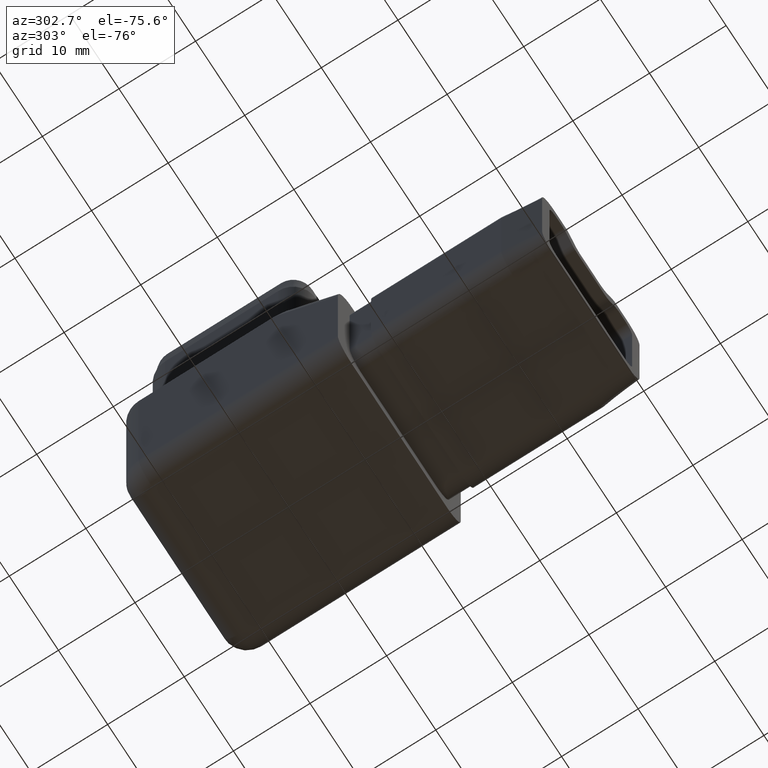
[diagram: clean part render]
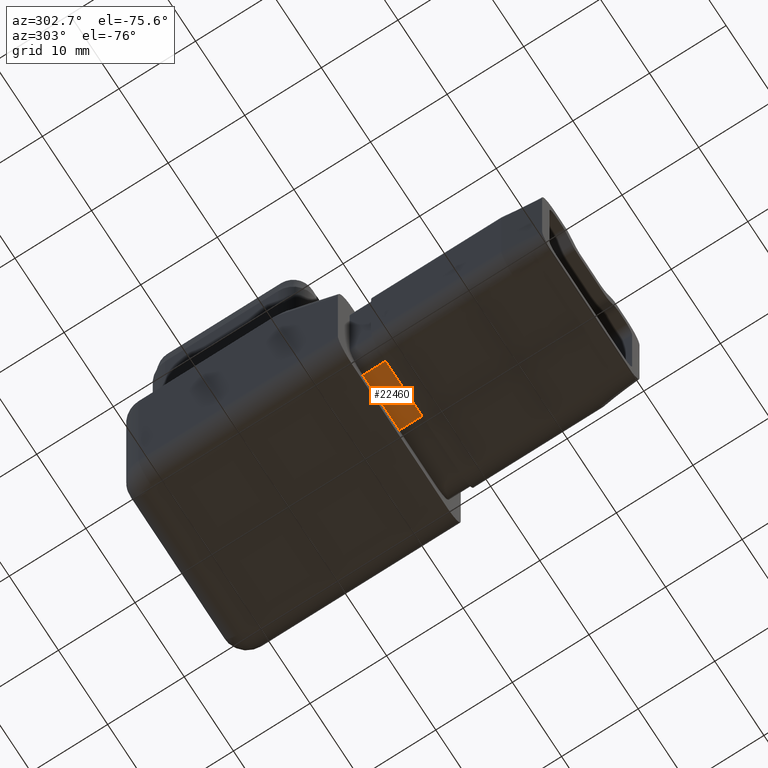
[diagram: same view with one face highlighted and labeled with its STEP entity id]
A machine part, auxiliary view. The second image highlights one B-rep face of the part: STEP entity #22460.
In plain terms, the highlighted planar face has unit normal (0, 0, -1).
Its self-contained STEP definition (entity closure, byte-faithful):
#287 = VECTOR ( 'NONE', #24107, 1000.000000000000000 ) ;
#478 = PLANE ( 'NONE',  #18721 ) ;
#811 = DIRECTION ( 'NONE',  ( 0.0000000000000000000, 4.440892098500625200E-016, -1.000000000000000000 ) ) ;
#1066 = B_SPLINE_CURVE_WITH_KNOTS ( 'NONE', 3,
 ( #16354, #4638, #6523, #20424 ),
 .UNSPECIFIED., .F., .F.,
 ( 4, 4 ),
 ( 0.0000000000000000000, 1.000000000000000000 ),
 .UNSPECIFIED. ) ;
#1442 = ORIENTED_EDGE ( 'NONE', *, *, #14283, .F. ) ;
#1624 = LINE ( 'NONE', #16746, #6238 ) ;
#2016 = CARTESIAN_POINT ( 'NONE',  ( -7.400000000000003900, -17.50000000000000400, -12.10000000000000700 ) ) ;
#2876 = DIRECTION ( 'NONE',  ( 1.000000000000000000, 0.0000000000000000000, 0.0000000000000000000 ) ) ;
#2885 = VECTOR ( 'NONE', #18732, 1000.000000000000000 ) ;
#4428 = CARTESIAN_POINT ( 'NONE',  ( 1.734723475976807100E-015, -14.50000000000000200, -12.10000000000000700 ) ) ;
#4638 = CARTESIAN_POINT ( 'NONE',  ( 0.0000000000000000000, -16.50000000000000400, -12.10000000000000700 ) ) ;
#5136 = CARTESIAN_POINT ( 'NONE',  ( 0.0000000000000000000, -17.50000000000000400, -12.10000000000000700 ) ) ;
#6238 = VECTOR ( 'NONE', #2876, 1000.000000000000000 ) ;
#6401 = EDGE_LOOP ( 'NONE', ( #16629, #8941, #9095, #1442 ) ) ;
#6523 = CARTESIAN_POINT ( 'NONE',  ( 0.0000000000000000000, -15.50000000000000400, -12.10000000000000500 ) ) ;
#7570 = CARTESIAN_POINT ( 'NONE',  ( -7.400000000000003900, -17.50000000000000400, -12.10000000000000700 ) ) ;
#8855 = EDGE_CURVE ( 'NONE', #25534, #15267, #12860, .T. ) ;
#8941 = ORIENTED_EDGE ( 'NONE', *, *, #14329, .T. ) ;
#9095 = ORIENTED_EDGE ( 'NONE', *, *, #24250, .F. ) ;
#11505 = VERTEX_POINT ( 'NONE', #5136 ) ;
#12860 = LINE ( 'NONE', #2016, #287 ) ;
#14283 = EDGE_CURVE ( 'NONE', #25534, #11505, #1624, .T. ) ;
#14309 = FACE_OUTER_BOUND ( 'NONE', #6401, .T. ) ;
#14329 = EDGE_CURVE ( 'NONE', #15267, #23473, #23223, .T. ) ;
#14568 = DIRECTION ( 'NONE',  ( 0.0000000000000000000, 1.000000000000000000, 4.440892098500625200E-016 ) ) ;
#15267 = VERTEX_POINT ( 'NONE', #24043 ) ;
#16354 = CARTESIAN_POINT ( 'NONE',  ( 0.0000000000000000000, -17.50000000000000400, -12.10000000000000700 ) ) ;
#16629 = ORIENTED_EDGE ( 'NONE', *, *, #8855, .T. ) ;
#16746 = CARTESIAN_POINT ( 'NONE',  ( -7.400000000000003900, -17.50000000000000400, -12.10000000000000700 ) ) ;
#16924 = CARTESIAN_POINT ( 'NONE',  ( -7.400000000000002100, -14.50000000000000200, -12.10000000000000700 ) ) ;
#18721 = AXIS2_PLACEMENT_3D ( 'NONE', #20113, #811, #14568 ) ;
#18732 = DIRECTION ( 'NONE',  ( 1.000000000000000000, 0.0000000000000000000, 0.0000000000000000000 ) ) ;
#20113 = CARTESIAN_POINT ( 'NONE',  ( -7.400000000000003900, -17.50000000000000400, -12.10000000000000700 ) ) ;
#20424 = CARTESIAN_POINT ( 'NONE',  ( 1.734723475976807100E-015, -14.50000000000000200, -12.10000000000000700 ) ) ;
#22460 = ADVANCED_FACE ( 'NONE', ( #14309 ), #478, .T. ) ;
#23223 = LINE ( 'NONE', #16924, #2885 ) ;
#23473 = VERTEX_POINT ( 'NONE', #4428 ) ;
#24043 = CARTESIAN_POINT ( 'NONE',  ( -7.400000000000002100, -14.50000000000000200, -12.10000000000000700 ) ) ;
#24107 = DIRECTION ( 'NONE',  ( 4.930380657631323800E-032, 1.000000000000000000, 4.440892098500625200E-016 ) ) ;
#24250 = EDGE_CURVE ( 'NONE', #11505, #23473, #1066, .T. ) ;
#25534 = VERTEX_POINT ( 'NONE', #7570 ) ;